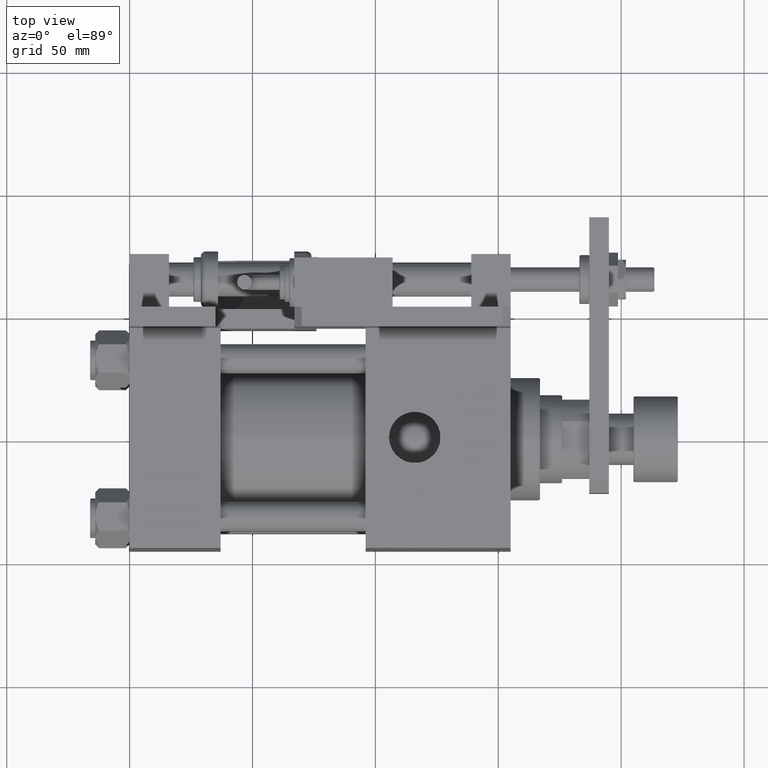
[diagram: clean part render]
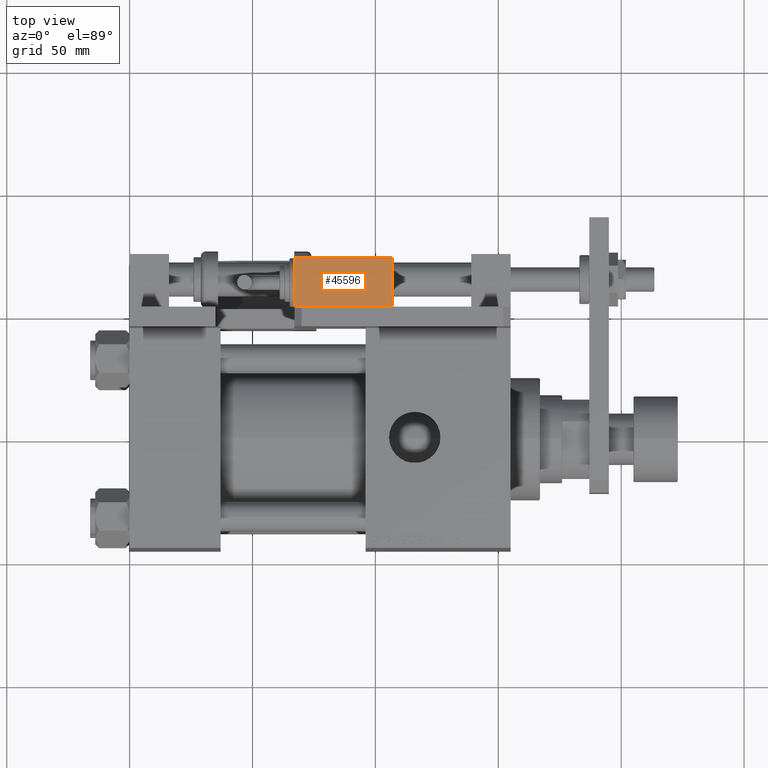
[diagram: same view with one face highlighted and labeled with its STEP entity id]
A machine part, top view. The second image highlights one B-rep face of the part: STEP entity #45596.
In plain terms, the highlighted planar face has unit normal (0, 0, -1).
Its self-contained STEP definition (entity closure, byte-faithful):
#43 = VECTOR ( 'NONE', #26570, 1000.000000000000000 ) ;
#1002 = EDGE_CURVE ( 'NONE', #55928, #40221, #18876, .T. ) ;
#1349 = CARTESIAN_POINT ( 'NONE',  ( -19.99999999999994316, -17.49999999999996092, 10.00000000000000000 ) ) ;
#2399 = FACE_OUTER_BOUND ( 'NONE', #18981, .T. ) ;
#2668 = DIRECTION ( 'NONE',  ( 0.000000000000000000, -0.000000000000000000, 1.000000000000000000 ) ) ;
#7897 = VERTEX_POINT ( 'NONE', #10561 ) ;
#10012 = CARTESIAN_POINT ( 'NONE',  ( -19.99999999999994316, -17.49999999999996092, 10.00000000000000000 ) ) ;
#10256 = VECTOR ( 'NONE', #19076, 1000.000000000000000 ) ;
#10259 = EDGE_CURVE ( 'NONE', #7897, #55928, #47146, .T. ) ;
#10264 = EDGE_CURVE ( 'NONE', #40221, #56419, #34322, .T. ) ;
#10561 = CARTESIAN_POINT ( 'NONE',  ( 20.00000000000005329, -17.49999999999996092, -9.999999999999998224 ) ) ;
#10942 = CARTESIAN_POINT ( 'NONE',  ( 0.000000000000000000, -17.49999999999996092, 0.000000000000000000 ) ) ;
#15508 = PLANE ( 'NONE',  #49325 ) ;
#18876 = LINE ( 'NONE', #10012, #43 ) ;
#18981 = EDGE_LOOP ( 'NONE', ( #44646, #55862, #29987, #51177 ) ) ;
#19076 = DIRECTION ( 'NONE',  ( 1.000000000000000000, 0.000000000000000000, 0.000000000000000000 ) ) ;
#21182 = DIRECTION ( 'NONE',  ( 0.000000000000000000, 0.000000000000000000, 1.000000000000000000 ) ) ;
#22264 = CARTESIAN_POINT ( 'NONE',  ( 20.00000000000005329, -17.49999999999996092, 10.00000000000000000 ) ) ;
#26570 = DIRECTION ( 'NONE',  ( -1.000000000000000000, -0.000000000000000000, -0.000000000000000000 ) ) ;
#29479 = DIRECTION ( 'NONE',  ( 0.000000000000000000, 1.000000000000000000, 0.000000000000000000 ) ) ;
#29987 = ORIENTED_EDGE ( 'NONE', *, *, #10264, .T. ) ;
#34322 = LINE ( 'NONE', #43434, #38552 ) ;
#36193 = LINE ( 'NONE', #44186, #10256 ) ;
#38552 = VECTOR ( 'NONE', #52548, 1000.000000000000000 ) ;
#40221 = VERTEX_POINT ( 'NONE', #1349 ) ;
#43434 = CARTESIAN_POINT ( 'NONE',  ( -19.99999999999994316, -17.49999999999996092, -9.999999999999998224 ) ) ;
#43705 = CARTESIAN_POINT ( 'NONE',  ( 20.00000000000005329, -17.49999999999996092, -9.999999999999998224 ) ) ;
#44186 = CARTESIAN_POINT ( 'NONE',  ( -19.99999999999994316, -17.49999999999996092, -9.999999999999998224 ) ) ;
#44646 = ORIENTED_EDGE ( 'NONE', *, *, #10259, .T. ) ;
#45596 = ADVANCED_FACE ( 'NONE', ( #2399 ), #15508, .F. ) ;
#47146 = LINE ( 'NONE', #43705, #48558 ) ;
#47487 = EDGE_CURVE ( 'NONE', #56419, #7897, #36193, .T. ) ;
#48558 = VECTOR ( 'NONE', #21182, 1000.000000000000000 ) ;
#49325 = AXIS2_PLACEMENT_3D ( 'NONE', #10942, #29479, #2668 ) ;
#51177 = ORIENTED_EDGE ( 'NONE', *, *, #47487, .T. ) ;
#52548 = DIRECTION ( 'NONE',  ( -0.000000000000000000, -0.000000000000000000, -1.000000000000000000 ) ) ;
#55862 = ORIENTED_EDGE ( 'NONE', *, *, #1002, .T. ) ;
#55928 = VERTEX_POINT ( 'NONE', #22264 ) ;
#56359 = CARTESIAN_POINT ( 'NONE',  ( -19.99999999999994316, -17.49999999999996092, -9.999999999999998224 ) ) ;
#56419 = VERTEX_POINT ( 'NONE', #56359 ) ;